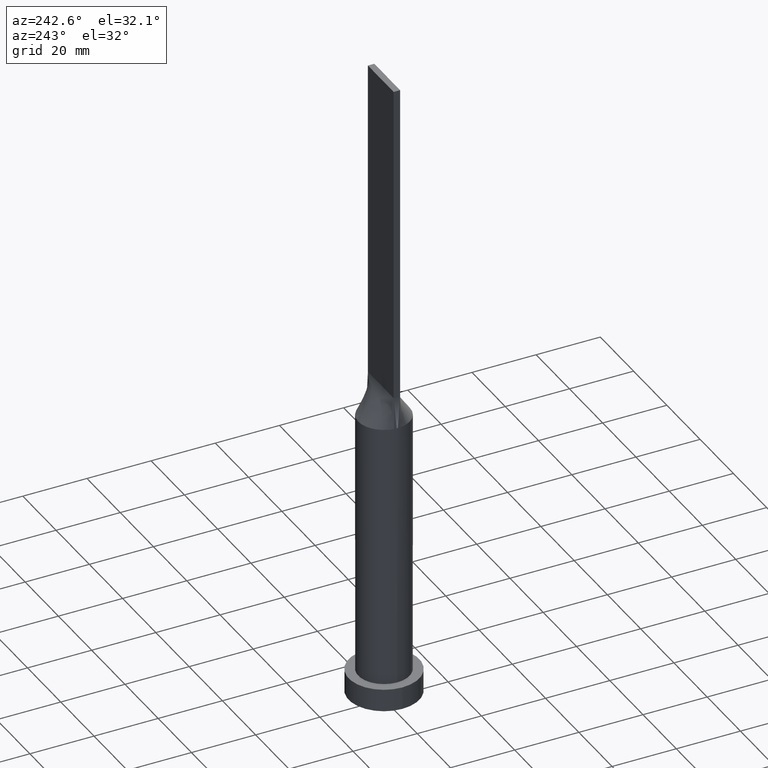
[diagram: clean part render]
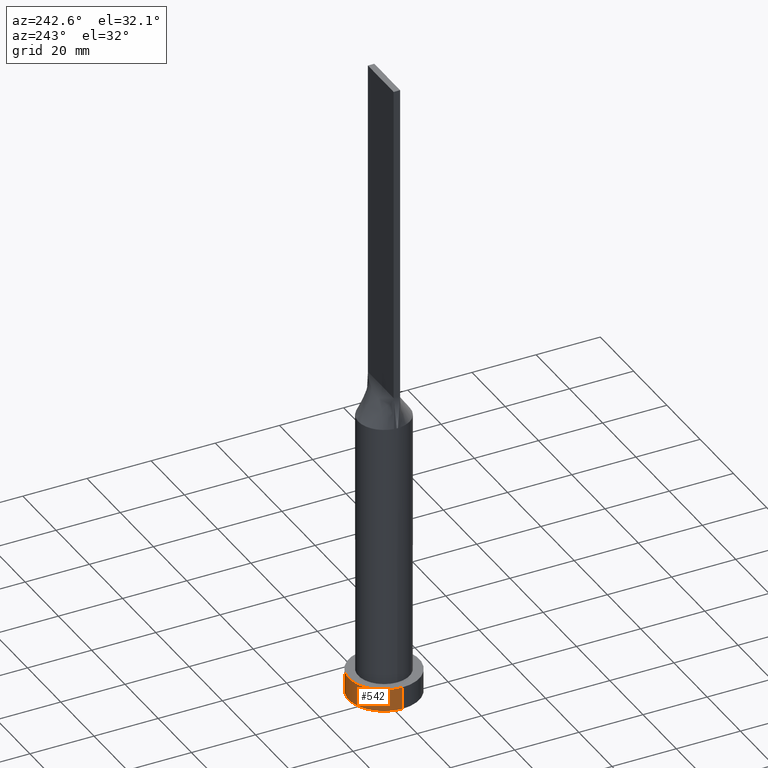
[diagram: same view with one face highlighted and labeled with its STEP entity id]
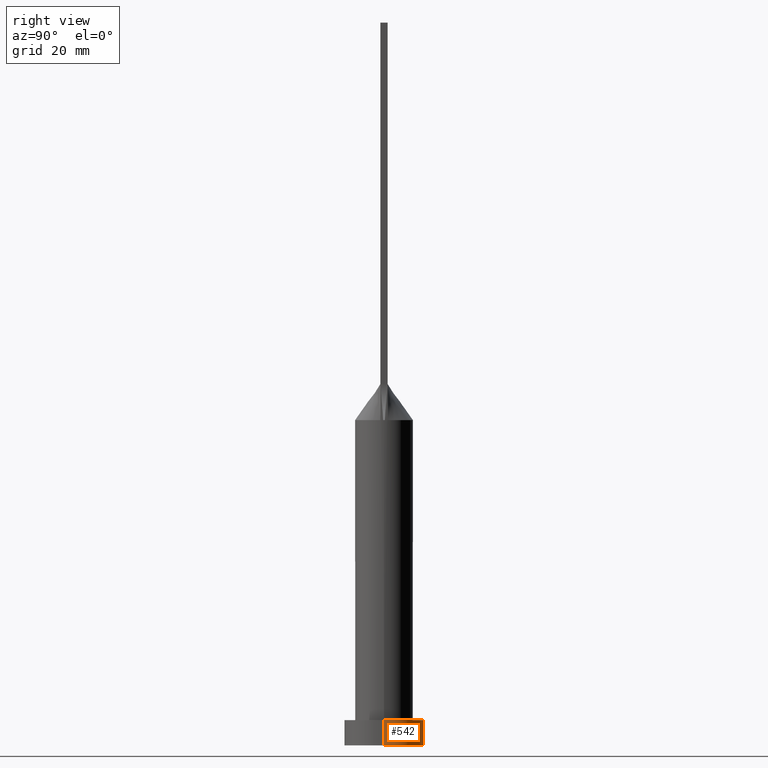
[diagram: same view with one face highlighted and labeled with its STEP entity id]
A machine part, auxiliary view. The second image highlights one B-rep face of the part: STEP entity #542.
A second angle (right view) of the same face is appended — the face is thin or edge-on in the first view.
In plain terms, the highlighted cylindrical surface (partial cylindrical patch) has radius 11 mm, axis along (-0, -0, -1).
Its self-contained STEP definition (entity closure, byte-faithful):
#2 = FACE_OUTER_BOUND ( 'NONE', #7, .T. ) ;
#3 = CARTESIAN_POINT ( 'NONE',  ( -11.00000000000000000, 0.000000000000000000, 7.000000000000000000 ) ) ;
#7 = EDGE_LOOP ( 'NONE', ( #163, #318, #201, #116 ) ) ;
#27 = DIRECTION ( 'NONE',  ( -0.000000000000000000, -0.000000000000000000, -1.000000000000000000 ) ) ;
#28 = EDGE_CURVE ( 'NONE', #583, #354, #617, .T. ) ;
#29 = VECTOR ( 'NONE', #27, 1000.000000000000000 ) ;
#36 = EDGE_CURVE ( 'NONE', #248, #546, #170, .T. ) ;
#37 = DIRECTION ( 'NONE',  ( -1.000000000000000000, 0.000000000000000000, 0.000000000000000000 ) ) ;
#39 = AXIS2_PLACEMENT_3D ( 'NONE', #550, #312, #97 ) ;
#91 = CYLINDRICAL_SURFACE ( 'NONE', #329, 11.00000000000000000 ) ;
#97 = DIRECTION ( 'NONE',  ( 1.000000000000000000, 0.000000000000000000, 0.000000000000000000 ) ) ;
#116 = ORIENTED_EDGE ( 'NONE', *, *, #36, .F. ) ;
#131 = VECTOR ( 'NONE', #468, 1000.000000000000000 ) ;
#163 = ORIENTED_EDGE ( 'NONE', *, *, #227, .F. ) ;
#170 = LINE ( 'NONE', #332, #131 ) ;
#201 = ORIENTED_EDGE ( 'NONE', *, *, #350, .T. ) ;
#217 = CIRCLE ( 'NONE', #433, 11.00000000000000000 ) ;
#227 = EDGE_CURVE ( 'NONE', #583, #248, #217, .T. ) ;
#248 = VERTEX_POINT ( 'NONE', #3 ) ;
#250 = CARTESIAN_POINT ( 'NONE',  ( 0.000000000000000000, 0.000000000000000000, 7.000000000000000000 ) ) ;
#291 = CIRCLE ( 'NONE', #39, 11.00000000000000000 ) ;
#301 = DIRECTION ( 'NONE',  ( 0.000000000000000000, 0.000000000000000000, 1.000000000000000000 ) ) ;
#312 = DIRECTION ( 'NONE',  ( 0.000000000000000000, 0.000000000000000000, 1.000000000000000000 ) ) ;
#318 = ORIENTED_EDGE ( 'NONE', *, *, #28, .T. ) ;
#329 = AXIS2_PLACEMENT_3D ( 'NONE', #452, #498, #37 ) ;
#332 = CARTESIAN_POINT ( 'NONE',  ( -11.00000000000000000, 0.000000000000000000, 7.000000000000000000 ) ) ;
#350 = EDGE_CURVE ( 'NONE', #354, #546, #291, .T. ) ;
#354 = VERTEX_POINT ( 'NONE', #367 ) ;
#367 = CARTESIAN_POINT ( 'NONE',  ( 11.00000000000000000, 1.347111479062088405E-15, 0.000000000000000000 ) ) ;
#384 = CARTESIAN_POINT ( 'NONE',  ( 11.00000000000000000, 1.347111479062088405E-15, 7.000000000000000000 ) ) ;
#433 = AXIS2_PLACEMENT_3D ( 'NONE', #250, #301, #627 ) ;
#444 = CARTESIAN_POINT ( 'NONE',  ( 11.00000000000000000, 1.347111479062088405E-15, 7.000000000000000000 ) ) ;
#452 = CARTESIAN_POINT ( 'NONE',  ( 0.000000000000000000, 0.000000000000000000, 7.000000000000000000 ) ) ;
#468 = DIRECTION ( 'NONE',  ( -0.000000000000000000, -0.000000000000000000, -1.000000000000000000 ) ) ;
#498 = DIRECTION ( 'NONE',  ( -0.000000000000000000, -0.000000000000000000, -1.000000000000000000 ) ) ;
#542 = ADVANCED_FACE ( 'NONE', ( #2 ), #91, .T. ) ;
#546 = VERTEX_POINT ( 'NONE', #587 ) ;
#550 = CARTESIAN_POINT ( 'NONE',  ( 0.000000000000000000, 0.000000000000000000, 0.000000000000000000 ) ) ;
#583 = VERTEX_POINT ( 'NONE', #444 ) ;
#587 = CARTESIAN_POINT ( 'NONE',  ( -11.00000000000000000, 0.000000000000000000, 0.000000000000000000 ) ) ;
#617 = LINE ( 'NONE', #384, #29 ) ;
#627 = DIRECTION ( 'NONE',  ( 1.000000000000000000, 0.000000000000000000, 0.000000000000000000 ) ) ;